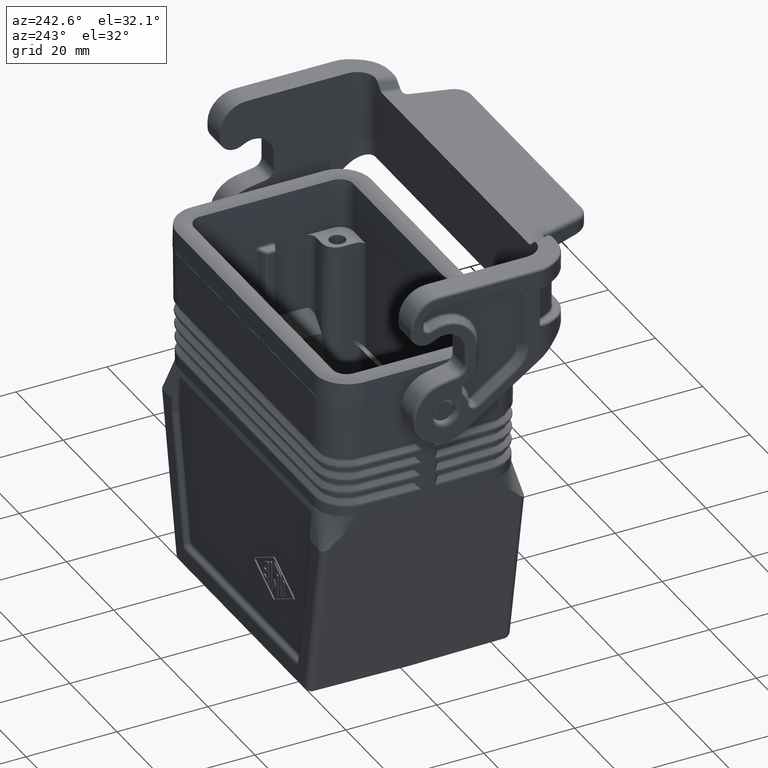
[diagram: clean part render]
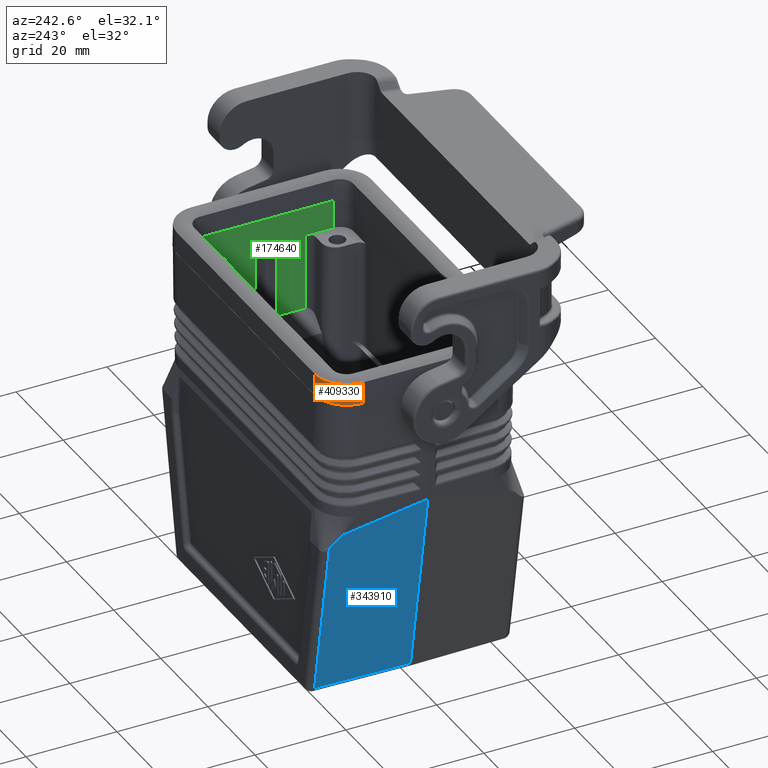
[diagram: same view with three faces highlighted in distinct colors, each labeled with its STEP entity id]
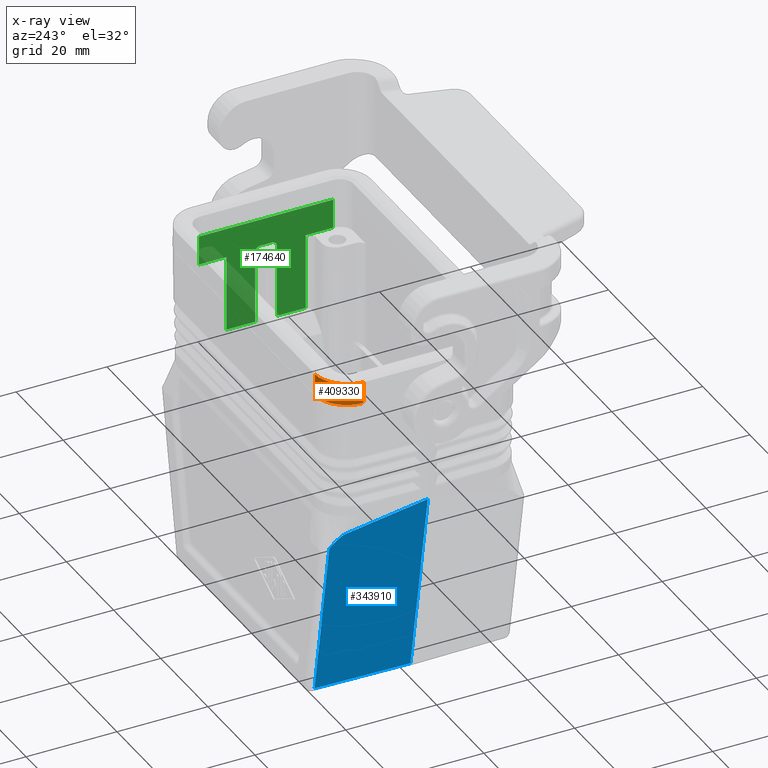
[diagram: x-ray of the same camera — body ghosted, the three highlighted faces saturated]
A machine part, auxiliary view with three faces highlighted in distinct colors.
The next image is the same camera in x-ray (body ghosted, the three faces saturated) — at least one of them is partly hidden behind the body in this view.
Their STEP definitions:

[orange] entity #409330 — the highlighted cylindrical surface (edge-blend (fillet) strip) has radius 7 mm, axis along (0.0174, -0.0174, 0.9997).
#338380=CARTESIAN_POINT('',(74.249363047703,57.8622095599236,
0.250000000000014));
#338390=VERTEX_POINT('',#338380);
#384140=CARTESIAN_POINT('',(81.0787767478423,63.7277816376477,
-4.46028682450612));
#384150=CARTESIAN_POINT('',(81.0787767478423,62.8862861857834,
-4.92002262571846));
#384160=CARTESIAN_POINT('',(81.0787767478423,61.81,-5.15525859545347));
#384170=CARTESIAN_POINT('',(81.0787767478423,60.7337138142166,
-4.92002262571845));
#384180=CARTESIAN_POINT('',(81.0787767478423,59.8922183623523,
-4.46028682450611));
#384190=CARTESIAN_POINT('',(79.8807238022891,63.7277816376477,
-4.46028682450612));
#384200=CARTESIAN_POINT('',(80.0283686536477,62.8862861857834,
-4.92002262571846));
#384210=CARTESIAN_POINT('',(80.2172087876819,61.81,-5.15525859545347));
#384220=CARTESIAN_POINT('',(80.4060489217161,60.7337138142166,
-4.92002262571845));
#384230=CARTESIAN_POINT('',(80.5536937730747,59.8922183623523,
-4.46028682450611));
#384240=CARTESIAN_POINT('',(78.7031637523404,63.4123286382789,
-4.46028682450612));
#384250=CARTESIAN_POINT('',(78.9959931901507,62.6097228698981,
-4.92002262571846));
#384260=CARTESIAN_POINT('',(79.3705267399253,61.5831772133237,
-5.15525859545347));
#384270=CARTESIAN_POINT('',(79.7450602897,60.5566315567494,
-4.92002262571845));
#384280=CARTESIAN_POINT('',(80.0378897275102,59.7540257883686,
-4.46028682450611));
#384290=CARTESIAN_POINT('',(76.6278582662526,62.2142206813909,
-4.46028682450611));
#384300=CARTESIAN_POINT('',(77.1764872900197,61.5592922170783,
-4.92002262571846));
#384310=CARTESIAN_POINT('',(77.878192614858,60.7216282020747,
-5.15525859545347));
#384320=CARTESIAN_POINT('',(78.5798979396962,59.883964187071,
-4.92002262571845));
#384330=CARTESIAN_POINT('',(79.1285269634633,59.2290357227585,
-4.46028682450611));
#384340=CARTESIAN_POINT('',(75.7657793186089,61.3521417337472,
-4.46028682450611));
#384350=CARTESIAN_POINT('',(76.4207077829215,60.80351270998,
-4.92002262571845));
#384360=CARTESIAN_POINT('',(77.2583717979251,60.1018073851418,
-5.15525859545347));
#384370=CARTESIAN_POINT('',(78.0960358129288,59.4001020603035,
-4.92002262571845));
#384380=CARTESIAN_POINT('',(78.7509642772413,58.8514730365365,
-4.46028682450611));
#384390=CARTESIAN_POINT('',(74.567671361721,59.2768362476593,
-4.46028682450611));
#384400=CARTESIAN_POINT('',(75.3702771301018,58.984006809849,
-4.92002262571845));
#384410=CARTESIAN_POINT('',(76.3968227866761,58.6094732600744,
-5.15525859545347));
#384420=CARTESIAN_POINT('',(77.4233684432504,58.2349397102998,
-4.92002262571845));
#384430=CARTESIAN_POINT('',(78.2259742116313,57.9421102724895,
-4.4602868245061));
#384440=CARTESIAN_POINT('',(74.2522183623522,58.0992761977106,
-4.46028682450611));
#384450=CARTESIAN_POINT('',(75.0937138142165,57.951631346352,
-4.92002262571845));
#384460=CARTESIAN_POINT('',(76.1699999999999,57.7627912123178,
-5.15525859545347));
#384470=CARTESIAN_POINT('',(77.2462861857833,57.5739510782836,
-4.92002262571845));
#384480=CARTESIAN_POINT('',(78.0877816376476,57.426306226925,
-4.4602868245061));
#384490=CARTESIAN_POINT('',(74.2522183623522,56.9012232521574,
-4.46028682450611));
#384500=CARTESIAN_POINT('',(75.0937138142165,56.9012232521574,
-4.92002262571845));
#384510=CARTESIAN_POINT('',(76.1699999999999,56.9012232521574,
-5.15525859545347));
#384520=CARTESIAN_POINT('',(77.2462861857833,56.9012232521574,
-4.92002262571845));
#384530=CARTESIAN_POINT('',(78.0877816376476,56.9012232521574,
-4.4602868245061));
#384540=(BOUNDED_SURFACE() B_SPLINE_SURFACE(4,3,((#384140,#384190,
#384240,#384290,#384340,#384390,#384440,#384490),(#384150,#384200,
#384250,#384300,#384350,#384400,#384450,#384500),(#384160,#384210,
#384260,#384310,#384360,#384410,#384460,#384510),(#384170,#384220,
#384270,#384320,#384370,#384420,#384470,#384520),(#384180,#384230,
#384280,#384330,#384380,#384430,#384480,#384530)),.UNSPECIFIED.,.F.,.F.,
.F.) B_SPLINE_SURFACE_WITH_KNOTS((5,5),(4,2,2,4),(0.,1.00004528560956),(
0.,1.57974828744028,3.15949657488057,4.73924486232085),.UNSPECIFIED.) 
GEOMETRIC_REPRESENTATION_ITEM() RATIONAL_B_SPLINE_SURFACE(((1.,1.,1.,1.,
1.,1.,1.,1.),(1.,1.,1.,1.,1.,1.,1.,1.),(0.990007541906154,
0.990007541906154,0.990007541906154,0.990007541906154,0.990007541906154,
0.990007541906154,0.990007541906154,0.990007541906154),(1.,1.,1.,1.,1.,
1.,1.,1.),(1.,1.,1.,1.,1.,1.,1.,1.))) REPRESENTATION_ITEM('') SURFACE())
;
#384600=CARTESIAN_POINT('',(81.0787767478423,63.7256383165523,
-4.46145693981216));
#384610=VERTEX_POINT('',#384600);
#384660=CARTESIAN_POINT('',(81.2618326339341,56.7181673660659,
-4.94999999999999));
#384670=DIRECTION('',(0.0174497491606827,-0.0174497491606847,
-0.999695459881888));
#384680=DIRECTION('',(0.999847695156391,3.90436829152115E-17,
0.0174524064372835));
#384690=AXIS2_PLACEMENT_3D('',#384660,#384670,#384680);
#384700=CYLINDRICAL_SURFACE('',#384690,7.);
#384710=CARTESIAN_POINT('',(81.0787767478423,63.7256383165524,
-4.46145693981236));
#384720=CARTESIAN_POINT('',(80.9683367464175,63.7228911562201,
-4.46295562417169));
#384730=CARTESIAN_POINT('',(80.8578041623665,63.7175240830197,
-4.46441572968826));
#384740=CARTESIAN_POINT('',(80.7473616674164,63.7095277172388,
-4.46583500595362));
#384750=CARTESIAN_POINT('',(80.6369193546437,63.7015313646481,
-4.46725427987785));
#384760=CARTESIAN_POINT('',(80.5265683692417,63.6909057455582,
-4.46863272165967));
#384770=CARTESIAN_POINT('',(80.4164953290837,63.6776591737657,
-4.46996855223123));
#384780=CARTESIAN_POINT('',(80.3064223534556,63.664412609739,
-4.47130438201966));
#384790=CARTESIAN_POINT('',(80.1966285786578,63.6485452212779,
-4.47259759660099));
#384800=CARTESIAN_POINT('',(80.0873003239848,63.6300833472289,
-4.47384675982134));
#384810=CARTESIAN_POINT('',(79.9779720193555,63.611621464744,
-4.47509592361248));
#384820=CARTESIAN_POINT('',(79.8691104777012,63.5905653241136,
-4.47630103053219));
#384830=CARTESIAN_POINT('',(79.7608976051967,63.5669587404968,
-4.47746088580276));
#384840=CARTESIAN_POINT('',(79.6526845686557,63.5433521210955,
-4.47862074283151));
#384850=CARTESIAN_POINT('',(79.5451214017524,63.5171953798884,
-4.47973534103141));
#384860=CARTESIAN_POINT('',(79.4383816126893,63.488548380723,
-4.48080366182782));
#384870=CARTESIAN_POINT('',(79.3316961005632,63.4599159484906,
-4.48187143938556));
#384880=CARTESIAN_POINT('',(79.2255388615899,63.4287183261582,
-4.48289595317593));
#384890=CARTESIAN_POINT('',(79.1200033885484,63.3949576217513,
-4.48387627234624));
#384900=CARTESIAN_POINT('',(79.0144749557352,63.3611991695072,
-4.48485652611985));
#384910=CARTESIAN_POINT('',(78.9095990106799,63.324886260602,
-4.48579228150101));
#384920=CARTESIAN_POINT('',(78.8055562606302,63.2860623761251,
-4.48668179121269));
#384930=CARTESIAN_POINT('',(78.7015136724879,63.2472385520645,
-4.48757129954015));
#384940=CARTESIAN_POINT('',(78.5983054837528,63.2059041383175,
-4.48841454580907));
#384950=CARTESIAN_POINT('',(78.4961107902618,63.1621210290527,
-4.48920991864307));
#384960=CARTESIAN_POINT('',(78.3939161479913,63.1183379417323,
-4.49000529107844));
#384970=CARTESIAN_POINT('',(78.2927361907203,63.0721066479352,
-4.49075277194689));
#384980=CARTESIAN_POINT('',(78.1927442565163,63.0235065198082,
-4.49145103358155));
#384990=CARTESIAN_POINT('',(78.0927522687045,62.9749063656256,
-4.49214929559056));
#385000=CARTESIAN_POINT('',(77.9939494512697,62.9239379578993,
-4.49279831928305));
#385010=CARTESIAN_POINT('',(77.8964996078331,62.8706964046201,
-4.49339723889279));
#385020=CARTESIAN_POINT('',(77.799049609197,62.8174547665479,
-4.49399615945639));
#385030=CARTESIAN_POINT('',(77.7029536634865,62.7619406410317,
-4.49454500397169));
#385040=CARTESIAN_POINT('',(77.6083626277439,62.7042623245162,
-4.4950433957411));
#385050=CARTESIAN_POINT('',(77.5137602480984,62.6465770908841,
-4.49554184728053));
#385060=CARTESIAN_POINT('',(77.4207106935775,62.586759241841,
-4.49598957443331));
#385070=CARTESIAN_POINT('',(77.3292162313772,62.5248376328304,
-4.49638724824457));
#385080=CARTESIAN_POINT('',(77.2376655594441,62.4628779822048,
-4.49678516636721));
#385090=CARTESIAN_POINT('',(77.1474203199131,62.3986386304609,
-4.49713403200174));
#385100=CARTESIAN_POINT('',(77.0586410910898,62.3322044295879,
-4.49743328698364));
#385110=CARTESIAN_POINT('',(76.9698620705245,62.2657703845561,
-4.49773254126355));
#385120=CARTESIAN_POINT('',(76.8825501009695,62.1971421562572,
-4.49798219005188));
#385130=CARTESIAN_POINT('',(76.7968614530909,62.1264227306766,
-4.49818197786361));
#385140=CARTESIAN_POINT('',(76.7111729128383,62.0557033939204,
-4.49838176542441));
#385150=CARTESIAN_POINT('',(76.6271087063065,61.9828936324797,
-4.49853169600521));
#385160=CARTESIAN_POINT('',(76.5448167053064,61.9081128592305,
-4.49863171777265));
#385170=CARTESIAN_POINT('',(76.4625247215523,61.8333321016532,
-4.49873173951914));
#385180=CARTESIAN_POINT('',(76.3820059024992,61.7565811929106,
-4.49878185479433));
#385190=CARTESIAN_POINT('',(76.303396244974,61.6779936016787,
-4.49878214840223));
#385200=CARTESIAN_POINT('',(76.2247865222424,61.5994059452589,
-4.49878244201037));
#385210=CARTESIAN_POINT('',(76.1480868450449,61.5189825350669,
-4.49873291441216));
#385220=CARTESIAN_POINT('',(76.0734184610721,61.4368678754925,
-4.49863375862463));
#385230=CARTESIAN_POINT('',(75.998749935411,61.3547530601,
-4.49853460264894));
#385240=CARTESIAN_POINT('',(75.9261134909267,61.2709479701025,
-4.4983858171357));
#385250=CARTESIAN_POINT('',(75.8556133585259,61.1856044689147,
-4.49818771457808));
#385260=CARTESIAN_POINT('',(75.8203632833358,61.1429327074383,
-4.49808866327402));
#385270=CARTESIAN_POINT('',(75.7856470719673,61.0998765067034,
-4.4979772848654));
#385280=CARTESIAN_POINT('',(75.7514760718344,61.0564552560449,
-4.49785363317242));
#385290=CARTESIAN_POINT('',(75.7173148731082,61.0130464600798,
-4.49773001694695));
#385300=CARTESIAN_POINT('',(75.6836452358117,60.9692053669946,
-4.49759394560854));
#385310=CARTESIAN_POINT('',(75.6504679807407,60.9249278102274,
-4.49744529289693));
#385320=CARTESIAN_POINT('',(75.5841159369346,60.8363759882046,
-4.49714799852428));
#385330=CARTESIAN_POINT('',(75.5197557349931,60.7461053210913,
-4.49680043661821));
#385340=CARTESIAN_POINT('',(75.4575107956092,60.6542515370453,
-4.49640229990077));
#385350=CARTESIAN_POINT('',(75.3952659827796,60.5623979397533,
-4.4960041639928));
#385360=CARTESIAN_POINT('',(75.3351371955536,60.4689622132099,
-4.49555544299331));
#385370=CARTESIAN_POINT('',(75.2772370501652,60.374095173175,
-4.49505633610257));
#385380=CARTESIAN_POINT('',(75.2193369602929,60.2792282241009,
-4.49455722969038));
#385390=CARTESIAN_POINT('',(75.1636662109681,60.1829310334275,
-4.49400779354208));
#385400=CARTESIAN_POINT('',(75.1103234934571,60.0853664729896,
-4.49340870258553));
#385410=CARTESIAN_POINT('',(75.0569807716141,59.9878019046285,
-4.49280961158031));
#385420=CARTESIAN_POINT('',(75.0059666965445,59.8889710994884,
-4.49216083803256));
#385430=CARTESIAN_POINT('',(74.9573636996675,59.7890455223144,
-4.49146352756051));
#385440=CARTESIAN_POINT('',(74.9087606481127,59.6891198327257,
-4.49076621630399));
#385450=CARTESIAN_POINT('',(74.8625691940657,59.5881005367403,
-4.49002038843881));
#385460=CARTESIAN_POINT('',(74.8188539467837,59.4861638021115,
-4.48922761500575));
#385470=CARTESIAN_POINT('',(74.7751386030021,59.3842268424615,
-4.48843483982268));
#385480=CARTESIAN_POINT('',(74.7338998763777,59.2813736152973,
-4.48759513791682));
#385490=CARTESIAN_POINT('',(74.6951837768901,59.1777806685308,
-4.48671030675274));
#385500=CARTESIAN_POINT('',(74.6758217003764,59.1259734206901,
-4.4862677991415));
#385510=CARTESIAN_POINT('',(74.6571089914006,59.0740357319037,
-4.485814496171));
#385520=CARTESIAN_POINT('',(74.6389855626743,59.0218028480184,
-4.48534895954478));
#385530=CARTESIAN_POINT('',(74.6208634683567,58.9695738099848,
-4.48488345719553));
#385540=CARTESIAN_POINT('',(74.6033443636424,58.9170846210247,
-4.48440601215614));
#385550=CARTESIAN_POINT('',(74.586438358314,58.8643555142061,
-4.48391674034001));
#385560=CARTESIAN_POINT('',(74.5526263522706,58.7588973149587,
-4.48293819684127));
#385570=CARTESIAN_POINT('',(74.5212677819802,58.652479119439,
-4.48191234101372));
#385580=CARTESIAN_POINT('',(74.4924332381639,58.5452719921739,
-4.48084021461172));
#385590=CARTESIAN_POINT('',(74.463598744115,58.4380650499445,
-4.47976809006018));
#385600=CARTESIAN_POINT('',(74.4372886670025,58.3300703731617,
-4.47864970468919));
#385610=CARTESIAN_POINT('',(74.4135579388565,58.2214688931423,
-4.47748624447746));
#385620=CARTESIAN_POINT('',(74.3898272264905,58.1128674853386,
-4.47632278503939));
#385630=CARTESIAN_POINT('',(74.3686761620203,58.0036605234669,
-4.47511425874773));
#385640=CARTESIAN_POINT('',(74.3501422601433,57.894034900045,
-4.473862013905));
#385650=CARTESIAN_POINT('',(74.3316083513588,57.7844092357668,
-4.47260976859558));
#385660=CARTESIAN_POINT('',(74.3156918055206,57.6743661817542,
-4.47131381088477));
#385670=CARTESIAN_POINT('',(74.3024118365739,57.5640945238129,
-4.46997571022605));
#385680=CARTESIAN_POINT('',(74.2891318487239,57.4538227089061,
-4.46863760766263));
#385690=CARTESIAN_POINT('',(74.2784885349166,57.3433235549302,
-4.46725736668903));
#385700=CARTESIAN_POINT('',(74.2704827955039,57.2327835092787,
-4.46583687156994));
#385710=CARTESIAN_POINT('',(74.2624770358924,57.1222431847301,
-4.4644163728669));
#385720=CARTESIAN_POINT('',(74.2571088423311,57.0116631953386,
-4.46295562338137));
#385730=CARTESIAN_POINT('',(74.2543616834477,56.9012232521574,
-4.46145693981241));
#385740=B_SPLINE_CURVE_WITH_KNOTS('',3,(#384710,#384720,#384730,#384740,
#384750,#384760,#384770,#384780,#384790,#384800,#384810,#384820,#384830,
#384840,#384850,#384860,#384870,#384880,#384890,#384900,#384910,#384920,
#384930,#384940,#384950,#384960,#384970,#384980,#384990,#385000,#385010,
#385020,#385030,#385040,#385050,#385060,#385070,#385080,#385090,#385100,
#385110,#385120,#385130,#385140,#385150,#385160,#385170,#385180,#385190,
#385200,#385210,#385220,#385230,#385240,#385250,#385260,#385270,#385280,
#385290,#385300,#385310,#385320,#385330,#385340,#385350,#385360,#385370,
#385380,#385390,#385400,#385410,#385420,#385430,#385440,#385450,#385460,
#385470,#385480,#385490,#385500,#385510,#385520,#385530,#385540,#385550,
#385560,#385570,#385580,#385590,#385600,#385610,#385620,#385630,#385640,
#385650,#385660,#385670,#385680,#385690,#385700,#385710,#385720,#385730)
,.UNSPECIFIED.,.F.,.F.,(4,3,3,3,3,3,3,3,3,3,3,3,3,3,3,3,3,3,3,3,3,3,3,3,
3,3,3,3,3,3,3,3,3,3,4),(0.,0.331866390886903,0.664320895713415,
0.996989918284365,1.32949149474603,1.66145018859539,1.99334474892569,
2.32615686617379,2.65954156252115,2.99311511354934,3.32648670109003,
3.65927310346375,3.9911441107941,4.32331914969232,4.65632990171477,
4.98980702015361,5.32336329036418,5.65660853329424,5.9891643347575,
6.15507242321489,6.32091438623187,6.65335984075112,6.98653994147464,
7.32007878351351,7.65358684478501,7.98667575283941,8.31897311937671,
8.48477558701871,8.65077020761122,8.98345858168101,9.31677824799831,
9.65034796664179,9.98377707002388,10.3166801610497,10.6486921207216),
.UNSPECIFIED.);
#385750=SURFACE_CURVE('',#385740,(#384700,#384540),.CURVE_3D.);
#385760=CARTESIAN_POINT('',(74.2543616834476,56.9012232521574,
-4.46145693981234));
#385770=VERTEX_POINT('',#385760);
#385780=EDGE_CURVE('',#384610,#385770,#385750,.T.);
#386550=CARTESIAN_POINT('',(74.17,56.8110661339052,0.250000000000007));
#386560=VERTEX_POINT('',#386550);
#386610=CARTESIAN_POINT('',(81.1710662963073,56.8089337036926,
0.250000000000007));
#386620=DIRECTION('',(0.,2.66505956485224E-16,-1.));
#386630=DIRECTION('',(-0.707106781186327,0.707106781186768,
1.88448169057368E-16));
#386640=AXIS2_PLACEMENT_3D('',#386610,#386620,#386630);
#386650=ELLIPSE('',#386640,7.00213243023734,7.);
#386660=EDGE_CURVE('',#386560,#338390,#386650,.T.);
#387620=CARTESIAN_POINT('',(81.1689338660947,63.81,0.25));
#387630=VERTEX_POINT('',#387620);
#387660=CARTESIAN_POINT('',(81.2618326339341,63.7171012321606,
-5.07216684506098));
#387670=DIRECTION('',(-0.0174497491606827,0.0174497491606847,
0.999695459881888));
#387680=VECTOR('',#387670,1.);
#387690=LINE('',#387660,#387680);
#387700=CARTESIAN_POINT('',(81.251152228447,63.7277816376477,
-4.4602868245059));
#387710=VERTEX_POINT('',#387700);
#387720=EDGE_CURVE('',#387710,#387630,#387690,.T.);
#388030=CARTESIAN_POINT('',(110.161223252158,61.8100000000001,
-0.949999999999996));
#388040=DIRECTION('',(-1.,-1.2225988798586E-15,8.26478052383381E-15));
#388050=DIRECTION('',(1.22259887985862E-15,-1.,3.58046925441612E-15));
#388060=AXIS2_PLACEMENT_3D('',#388030,#388040,#388050);
#388070=CYLINDRICAL_SURFACE('',#388060,4.);
#396060=CARTESIAN_POINT('',(74.2522183623522,56.7288477715529,
-4.46028682450607));
#396070=VERTEX_POINT('',#396060);
#396100=CARTESIAN_POINT('',(74.2628987678393,56.7181673660659,
-5.07216684506097));
#396110=DIRECTION('',(-0.0174497491606827,0.0174497491606847,
0.999695459881888));
#396120=VECTOR('',#396110,1.);
#396130=LINE('',#396100,#396120);
#396140=EDGE_CURVE('',#396070,#386560,#396130,.T.);
#396530=CARTESIAN_POINT('',(81.2511522284865,63.7277816376476,
-4.46028682450605));
#396540=CARTESIAN_POINT('',(81.2367818431211,63.7277816376477,
-4.46028682450601));
#396550=CARTESIAN_POINT('',(81.2224121872153,63.7277369659761,
-4.46031123117163));
#396560=CARTESIAN_POINT('',(81.2080437954155,63.7276476322676,
-4.46036003259739));
#396570=CARTESIAN_POINT('',(81.1936754035353,63.7275582985586,
-4.46040883402342));
#396580=CARTESIAN_POINT('',(81.1793082758954,63.7274243028174,
-4.46048203020527));
#396590=CARTESIAN_POINT('',(81.1649429447615,63.7272456630978,
-4.46057959136822));
#396600=CARTESIAN_POINT('',(81.1505776135285,63.727067023377,
-4.46067715253186));
#396610=CARTESIAN_POINT('',(81.1362140789303,63.7268437396841,
-4.46079907867004));
#396620=CARTESIAN_POINT('',(81.1218528702638,63.7265758384165,
-4.46094532221684));
#396630=CARTESIAN_POINT('',(81.1074916614811,63.7263079371468,
-4.46109156576482));
#396640=CARTESIAN_POINT('',(81.0931327787582,63.7259954183103,
-4.46126212671257));
#396650=CARTESIAN_POINT('',(81.0787767478423,63.7256383165523,
-4.46145693981216));
#396660=B_SPLINE_CURVE_WITH_KNOTS('',3,(#396530,#396540,#396550,#396560,
#396570,#396580,#396590,#396600,#396610,#396620,#396630,#396640,#396650)
,.UNSPECIFIED.,.F.,.F.,(4,3,3,3,4),(0.,0.043108793665688,
0.0862121680268002,0.129309090264205,0.172398541111501),.UNSPECIFIED.);
#396670=SURFACE_CURVE('',#396660,(#384700,#388070),.CURVE_3D.);
#396680=EDGE_CURVE('',#387710,#384610,#396670,.T.);
#397310=CARTESIAN_POINT('',(76.17,56.9012232521574,-0.949999999999989));
#397320=DIRECTION('',(1.69768972526034E-15,-1.,8.32357547810288E-15));
#397330=DIRECTION('',(1.,1.69768972526036E-15,2.62572988381369E-15));
#397340=AXIS2_PLACEMENT_3D('',#397310,#397320,#397330);
#397350=CYLINDRICAL_SURFACE('',#397340,4.);
#397360=CARTESIAN_POINT('',(74.2543616834476,56.9012232521574,
-4.46145693981234));
#397370=CARTESIAN_POINT('',(74.2540045816897,56.8868672212447,
-4.4612621267128));
#397380=CARTESIAN_POINT('',(74.2536920628533,56.8725083385252,
-4.4610915657651));
#397390=CARTESIAN_POINT('',(74.2534241615836,56.8581471297458,
-4.46094532221714));
#397400=CARTESIAN_POINT('',(74.2531562603161,56.8437859210826,
-4.46079907867036));
#397410=CARTESIAN_POINT('',(74.2529329766232,56.8294223864877,
-4.46067715253219));
#397420=CARTESIAN_POINT('',(74.2527543369024,56.815057055258,
-4.46057959136856));
#397430=CARTESIAN_POINT('',(74.2525756971829,56.8006917241274,
-4.4604820302056));
#397440=CARTESIAN_POINT('',(74.2524417014416,56.7863245964908,
-4.46040883402374));
#397450=CARTESIAN_POINT('',(74.2523523677326,56.771956204614,
-4.46036003259769));
#397460=CARTESIAN_POINT('',(74.2522630340241,56.7575878128175,
-4.46031123117191));
#397470=CARTESIAN_POINT('',(74.2522183623523,56.743218156915,
-4.46028682450624));
#397480=CARTESIAN_POINT('',(74.2522183623523,56.7288477715529,
-4.46028682450624));
#397490=B_SPLINE_CURVE_WITH_KNOTS('',3,(#397360,#397370,#397380,#397390,
#397400,#397410,#397420,#397430,#397440,#397450,#397460,#397470,#397480)
,.UNSPECIFIED.,.F.,.F.,(4,3,3,3,4),(0.,0.0430894508374646,
0.0861863730650401,0.129289747416138,0.172398541071895),.UNSPECIFIED.);
#397500=SURFACE_CURVE('',#397490,(#384700,#397350),.CURVE_3D.);
#397510=EDGE_CURVE('',#385770,#396070,#397500,.T.);
#409180=ORIENTED_EDGE('',*,*,#397510,.T.);
#409190=ORIENTED_EDGE('',*,*,#385780,.T.);
#409200=ORIENTED_EDGE('',*,*,#396680,.T.);
#409210=ORIENTED_EDGE('',*,*,#387720,.F.);
#409220=CARTESIAN_POINT('',(81.1710662963073,56.8089337036926,
0.250000000000014));
#409230=DIRECTION('',(1.67057759445642E-17,-1.97064586870965E-15,-1.));
#409240=DIRECTION('',(0.707106781186281,-0.707106781186814,
1.40526982453776E-15));
#409250=AXIS2_PLACEMENT_3D('',#409220,#409230,#409240);
#409260=ELLIPSE('',#409250,7.00213243023734,7.);
#409270=EDGE_CURVE('',#338390,#387630,#409260,.T.);
#409280=ORIENTED_EDGE('',*,*,#409270,.T.);
#409290=ORIENTED_EDGE('',*,*,#386660,.T.);
#409300=ORIENTED_EDGE('',*,*,#396140,.T.);
#409310=EDGE_LOOP('',(#409300,#409290,#409280,#409210,#409200,#409190,
#409180));
#409320=FACE_OUTER_BOUND('',#409310,.T.);
#409330=ADVANCED_FACE('',(#409320),#384700,.T.);

[blue] entity #343910 — the highlighted planar face has unit normal (-0.9848, 0.0087, -0.1737).
#2830=CARTESIAN_POINT('',(95.62,55.9851598102565,68.7606060548547));
#2840=VERTEX_POINT('',#2830);
#2870=CARTESIAN_POINT('',(95.62,62.0761821389974,34.2285391921959));
#2880=DIRECTION('',(0.,0.17370590715595,-0.984797572001032));
#2890=VECTOR('',#2880,1.);
#2900=LINE('',#2870,#2890);
#2910=CARTESIAN_POINT('',(95.62,63.3915939565569,26.7710244460151));
#2920=VERTEX_POINT('',#2910);
#2930=EDGE_CURVE('',#2840,#2920,#2900,.T.);
#104240=CARTESIAN_POINT('',(74.6069101967098,55.8312961739701,
68.577227598266));
#104250=VERTEX_POINT('',#104240);
#162830=CARTESIAN_POINT('',(87.6202389744399,55.9265833547073,
68.690793198027));
#162840=DIRECTION('',(-0.99993511934356,-0.00732180059919379,
-0.00872630158584786));
#162850=VECTOR('',#162840,1.);
#162860=LINE('',#162830,#162850);
#162870=EDGE_CURVE('',#2840,#104250,#162860,.T.);
#340460=CARTESIAN_POINT('',(81.1879557833748,63.0702319305791,
26.4503986860161));
#340470=CARTESIAN_POINT('',(85.9986371889166,63.1962040565589,
26.4503986860161));
#340480=CARTESIAN_POINT('',(90.8093185944583,63.3221761825388,
26.4503986860161));
#340490=CARTESIAN_POINT('',(95.6200000000001,63.4481483085187,
26.4503986860161));
#340500=CARTESIAN_POINT('',(-157.274567562472,33.0329107929375,
280.940921900853));
#340510=CARTESIAN_POINT('',(-72.9763783749811,41.8922126525936,
203.362458613125));
#340520=CARTESIAN_POINT('',(11.3218108125117,50.7515145122502,
125.783995325396));
#340530=CARTESIAN_POINT('',(95.6199999999978,59.6108163719066,
48.2055320376664));
#340540=B_SPLINE_SURFACE_WITH_KNOTS('',3,1,((#340460,#340500),(#340470,
#340510),(#340480,#340520),(#340490,#340530)),.UNSPECIFIED.,.F.,.F.,.F.,
(4,4),(2,2),(10.8454751284089,25.2824665414193),(1.,242.129772990806),
.UNSPECIFIED.);
#340570=CARTESIAN_POINT('',(95.62,62.0761821389974,34.2285391921959));
#340580=DIRECTION('',(-0.00872653549837393,0.984760073927079,
0.17369929296727));
#340590=DIRECTION('',(0.,-0.17370590715595,0.984797572001032));
#340600=AXIS2_PLACEMENT_3D('',#340570,#340580,#340590);
#340610=PLANE('',#340600);
#340620=CARTESIAN_POINT('',(77.6735104099461,62.627543818329,
30.201063693434));
#340630=CARTESIAN_POINT('',(79.1690512091561,62.6912146631843,
29.9152270894671));
#340640=CARTESIAN_POINT('',(80.664592008262,62.7548855080353,
29.6293904855202));
#340650=CARTESIAN_POINT('',(82.1601328074551,62.8185563528899,
29.3435538815565));
#340660=CARTESIAN_POINT('',(83.6556736066247,62.8822271977436,
29.0577172775974));
#340670=CARTESIAN_POINT('',(85.1512144057943,62.9458980425973,
28.7718806736381));
#340680=CARTESIAN_POINT('',(86.646755204964,63.0095688874509,
28.486044069679));
#340690=CARTESIAN_POINT('',(88.1422960041336,63.0732397323046,
28.2002074657198));
#340700=CARTESIAN_POINT('',(89.6378368033034,63.1369105771583,
27.9143708617606));
#340710=CARTESIAN_POINT('',(91.133377602473,63.2005814220119,
27.6285342578016));
#340720=CARTESIAN_POINT('',(92.6289184016229,63.2642522668647,
27.3426976538463));
#340730=CARTESIAN_POINT('',(94.1244592008775,63.3279231116933,
27.0568610500336));
#340740=CARTESIAN_POINT('',(95.62,63.391593956557,26.7710244460151));
#340750=B_SPLINE_CURVE_WITH_KNOTS('',3,(#340620,#340630,#340640,#340650,
#340660,#340670,#340680,#340690,#340700,#340710,#340720,#340730,#340740)
,.UNSPECIFIED.,.F.,.F.,(4,3,3,3,4),(0.,4.57182560949722,9.14365121899442
,13.7154768284917,18.2873024379889),.UNSPECIFIED.);
#340760=SURFACE_CURVE('',#340750,(#340610,#340540),.CURVE_3D.);
#340770=CARTESIAN_POINT('',(77.673510409946,62.627543818329,
30.201063693434));
#340780=VERTEX_POINT('',#340770);
#340790=EDGE_CURVE('',#340780,#2920,#340760,.T.);
#340960=CARTESIAN_POINT('',(74.3722335945684,56.0736933232706,
26.4503933502534));
#340970=CARTESIAN_POINT('',(74.3722335945684,56.9774833987332,
26.4503933502534));
#340980=CARTESIAN_POINT('',(74.5472324668817,57.8726780288106,
26.4503933616133));
#340990=CARTESIAN_POINT('',(75.0010106738518,58.9888956286002,
26.4503933907643));
#341000=CARTESIAN_POINT('',(75.1321108299956,59.2597434923264,
26.4503933992191));
#341010=CARTESIAN_POINT('',(75.5753148259334,60.0429838624163,
26.4503934279893));
#341020=CARTESIAN_POINT('',(75.9373221944019,60.5260731498051,
26.4503934513732));
#341030=CARTESIAN_POINT('',(76.7780754863489,61.3891305380069,
26.4503935051613));
#341040=CARTESIAN_POINT('',(77.2515229865253,61.7636596551609,
26.4503935355656));
#341050=CARTESIAN_POINT('',(78.0228932366796,62.2272146131957,
26.4503935853971));
#341060=CARTESIAN_POINT('',(78.2902164872184,62.365359813247,
26.4503936025656));
#341070=CARTESIAN_POINT('',(79.394173064625,62.8482016847684,
26.4503936729983));
#341080=CARTESIAN_POINT('',(80.2844800013657,63.046574047537,
26.4503937297794));
#341090=CARTESIAN_POINT('',(81.1879603735476,63.0702325087684,
26.4503937873198));
#341100=CARTESIAN_POINT('',(72.7810512949949,61.2827214332063,
35.4132158993643));
#341110=CARTESIAN_POINT('',(72.7810512949948,61.3778251516636,
35.4132158993643));
#341120=CARTESIAN_POINT('',(72.7997367081725,61.4741379383824,
35.3941338360078));
#341130=CARTESIAN_POINT('',(72.8464103802631,61.596499650854,
35.3451670965132));
#341140=CARTESIAN_POINT('',(72.8600856270302,61.6270614770544,
35.3309650792769));
#341150=CARTESIAN_POINT('',(72.9074075201653,61.7178031469168,
35.2826379273787));
#341160=CARTESIAN_POINT('',(72.9453880149251,61.773487911123,
35.2433585804779));
#341170=CARTESIAN_POINT('',(73.0305714434926,61.8733990355231,
35.1530072431515));
#341180=CARTESIAN_POINT('',(73.0792085296219,61.9190975942552,
35.1019352527259));
#341190=CARTESIAN_POINT('',(73.1601659708066,61.9782579225646,
35.0182301702532));
#341200=CARTESIAN_POINT('',(73.1876357171183,61.9958720000834,
34.9893910963062));
#341210=CARTESIAN_POINT('',(73.2983570317507,62.0581638700869,
34.8710809391623));
#341220=CARTESIAN_POINT('',(73.387530285663,62.0883659477026,
34.7757021332535));
#341230=CARTESIAN_POINT('',(73.4775530002576,62.0990107875353,
34.6790478294573));
#341240=B_SPLINE_SURFACE_WITH_KNOTS('',3,1,((#340960,#341100),(#340970,
#341110),(#340980,#341120),(#340990,#341130),(#341000,#341140),(#341010,
#341150),(#341020,#341160),(#341030,#341170),(#341040,#341180),(#341050,
#341190),(#341060,#341200),(#341070,#341210),(#341080,#341220),(#341090,
#341230)),.UNSPECIFIED.,.F.,.F.,.F.,(4,2,2,2,2,2,4),(2,2),(0.,
2.71136878210222,3.61515837613629,5.42273756420443,7.23031675227258,
8.13410634630665,10.8454751284089),(0.999995358485235,8.79664513599178),
.UNSPECIFIED.);
#341570=CARTESIAN_POINT('',(77.6735104099459,62.6275438183289,
30.2010636934341));
#341580=CARTESIAN_POINT('',(77.6631395757336,62.6270820363199,
30.2031606681899));
#341590=CARTESIAN_POINT('',(77.6528422034716,62.6265586957625,
30.2056103298292));
#341600=CARTESIAN_POINT('',(77.6426137998101,62.6259888206124,
30.2083272767972));
#341610=CARTESIAN_POINT('',(77.6323850304556,62.6254189250876,
30.2110443209033));
#341620=CARTESIAN_POINT('',(77.622223135124,62.6248021962348,
30.21403023866));
#341630=CARTESIAN_POINT('',(77.6121254327239,62.6241488515726,
30.217226968882));
#341640=CARTESIAN_POINT('',(77.6020276676475,62.6234955028552,
30.220423718946));
#341650=CARTESIAN_POINT('',(77.5919932802822,62.6228053842585,
30.2238321140118));
#341660=CARTESIAN_POINT('',(77.5820246874491,62.6220861782534,
30.2274087208527));
#341670=CARTESIAN_POINT('',(77.5720561234163,62.6213669743262,
30.2309853173605));
#341680=CARTESIAN_POINT('',(77.562153080198,62.6206186059441,
30.2347305487739));
#341690=CARTESIAN_POINT('',(77.5523228777939,62.6198473786497,
30.238609034551));
#341700=CARTESIAN_POINT('',(77.5424949319417,62.6190763283927,
30.2424866300104));
#341710=CARTESIAN_POINT('',(77.532729091564,62.6182815892417,
30.2465016459271));
#341720=CARTESIAN_POINT('',(77.5230149122029,62.61746659523,
30.2506340889549));
#341730=CARTESIAN_POINT('',(77.5133010032327,62.6166516239034,
30.2547664169576));
#341740=CARTESIAN_POINT('',(77.5036400352758,62.6158164769777,
30.2590157870169));
#341750=CARTESIAN_POINT('',(77.494026340427,62.6149639937049,
30.2633658176274));
#341760=CARTESIAN_POINT('',(77.4747990138714,62.6132590327582,
30.2720658502779));
#341770=CARTESIAN_POINT('',(77.4557591656349,62.6114850480052,
30.2811666210291));
#341780=CARTESIAN_POINT('',(77.4368712302299,62.6096578726285,
30.2905765794249));
#341790=CARTESIAN_POINT('',(77.4179829946883,62.6078306682174,
30.2999866873486));
#341800=CARTESIAN_POINT('',(77.3992455529884,62.6059499280977,
30.309707883102));
#341810=CARTESIAN_POINT('',(77.3806331185591,62.6040260357389,
30.3196800037831));
#341820=CARTESIAN_POINT('',(77.3620206155608,62.6021021362924,
30.3296521612019));
#341830=CARTESIAN_POINT('',(77.3435326643569,62.6001349109355,
30.3398762052675));
#341840=CARTESIAN_POINT('',(77.3251521552871,62.5981318250412,
30.3503089526755));
#341850=CARTESIAN_POINT('',(77.3067716696282,62.5961287416982,
30.3607416867956));
#341860=CARTESIAN_POINT('',(77.288498451899,62.5940897062886,
30.371383634416));
#341870=CARTESIAN_POINT('',(77.2703226365103,62.5920205765577,
30.3822010903566));
#341880=CARTESIAN_POINT('',(77.2521468729003,62.5899514527213,
30.3930185154807));
#341890=CARTESIAN_POINT('',(77.2340684664968,62.5878521857263,
30.404011723532));
#341900=CARTESIAN_POINT('',(77.2160832933743,62.5857277187988,
30.4151524825056));
#341910=CARTESIAN_POINT('',(77.1980981688915,62.5836032576169,
30.4262932113497));
#341920=CARTESIAN_POINT('',(77.1802062950542,62.581453571324,
30.4375816346751));
#341930=CARTESIAN_POINT('',(77.1624078145014,62.5792830454542,
30.4489928966887));
#341940=CARTESIAN_POINT('',(77.1446093628674,62.5771125231111,
30.4604041401612));
#341950=CARTESIAN_POINT('',(77.1269043535865,62.5749211498516,
30.471938289073));
#341960=CARTESIAN_POINT('',(77.1092957764296,62.5727129156103,
30.4835728732243));
#341970=CARTESIAN_POINT('',(77.0916840294893,62.5705042838568,
30.495209551759));
#341980=CARTESIAN_POINT('',(77.0741825768998,62.5682805501697,
30.5069373893815));
#341990=CARTESIAN_POINT('',(77.0567558379479,62.5660402075906,
30.5187631419948));
#342000=CARTESIAN_POINT('',(77.0393270178527,62.5637995974644,
30.530590306868));
#342010=CARTESIAN_POINT('',(77.0219692536781,62.5615418609658,
30.542518136744));
#342020=CARTESIAN_POINT('',(77.0046769412363,62.5592686281733,
30.5545371086043));
#342030=CARTESIAN_POINT('',(76.9700923135398,62.5547221622187,
30.5785750542802));
#342040=CARTESIAN_POINT('',(76.9357686667993,62.5501138858854,
30.6029765354176));
#342050=CARTESIAN_POINT('',(76.9016705016773,62.5454537340679,
30.6276834442749));
#342060=CARTESIAN_POINT('',(76.867572229424,62.5407935676089,
30.6523904307576));
#342070=CARTESIAN_POINT('',(76.8336993149496,62.5360813939407,
30.6774035855327));
#342080=CARTESIAN_POINT('',(76.800024926513,62.5313243398392,
30.7026811564868));
#342090=CARTESIAN_POINT('',(76.7663504861159,62.5265672783974,
30.7279587664447));
#342100=CARTESIAN_POINT('',(76.7328745103706,62.5217652590342,
30.7535012288035));
#342110=CARTESIAN_POINT('',(76.6995765042689,62.5169236229898,
30.7792772326104));
#342120=CARTESIAN_POINT('',(76.6662784773765,62.5120819839223,
30.8050532525114));
#342130=CARTESIAN_POINT('',(76.6331583899027,62.5072006801907,
30.8310630843731));
#342140=CARTESIAN_POINT('',(76.6002005993586,62.5022838831697,
30.8572822933919));
#342150=CARTESIAN_POINT('',(76.5672428058461,62.4973670857059,
30.8835015047721));
#342160=CARTESIAN_POINT('',(76.5344472957752,62.4924147640849,
30.9099302676323));
#342170=CARTESIAN_POINT('',(76.5018022654939,62.4874303066265,
30.936548779433));
#342180=CARTESIAN_POINT('',(76.4691572421543,62.482445850228,
30.9631672855736));
#342190=CARTESIAN_POINT('',(76.4366626946746,62.4774292375895,
30.9899756561266));
#342200=CARTESIAN_POINT('',(76.4043099221158,62.4723833242484,
31.0169572649552));
#342210=CARTESIAN_POINT('',(76.3396046147737,62.4622915346508,
31.0709202843119));
#342220=CARTESIAN_POINT('',(76.2754639019354,62.4520826900298,
31.1255752930575));
#342230=CARTESIAN_POINT('',(76.2118475271349,62.441775702636,
31.1808130487846));
#342240=CARTESIAN_POINT('',(76.1482313195596,62.4314687423357,
31.2360506593111));
#342250=CARTESIAN_POINT('',(76.0851396680023,62.4210634314884,
31.2918722057127));
#342260=CARTESIAN_POINT('',(76.0225596548141,62.4105755722712,
31.3481874511252));
#342270=CARTESIAN_POINT('',(75.9599790764825,62.400087618341,
31.4045032051057));
#342280=CARTESIAN_POINT('',(75.8979133329924,62.3895175243876,
31.4613105036309));
#342290=CARTESIAN_POINT('',(75.8363590097837,62.3788777916139,
31.5185383016049));
#342300=CARTESIAN_POINT('',(75.7747956507003,62.3682364969794,
31.5757745003409));
#342310=CARTESIAN_POINT('',(75.7136767050053,62.3575138841537,
31.6334940464503));
#342320=CARTESIAN_POINT('',(75.6529878791099,62.3467158822174,
31.6916626078703));
#342330=CARTESIAN_POINT('',(75.5922990118817,62.3359178729269,
31.7498312089066));
#342340=CARTESIAN_POINT('',(75.5320402102243,62.3250444159441,
31.8084491546355));
#342350=CARTESIAN_POINT('',(75.4722046256673,62.3140998344959,
31.8674915911827));
#342360=CARTESIAN_POINT('',(75.4123690201388,62.3031552492118,
31.9265340484236));
#342370=CARTESIAN_POINT('',(75.3529565716049,62.2921394979088,
31.9860012289758));
#342380=CARTESIAN_POINT('',(75.2939667852304,62.2810556880641,
32.0458754907505));
#342390=CARTESIAN_POINT('',(75.2349769931792,62.2699718771528,
32.105749758287));
#342400=CARTESIAN_POINT('',(75.1764097955214,62.2588199766046,
32.1660312799441));
#342410=CARTESIAN_POINT('',(75.1182704751681,62.2476021336235,
32.2267081477679));
#342420=CARTESIAN_POINT('',(75.0601311613429,62.2363842919019,
32.2873850087787));
#342430=CARTESIAN_POINT('',(75.0024196469279,62.225100483173,
32.3484573513117));
#342440=CARTESIAN_POINT('',(74.9451467837332,62.2137520618771,
32.4099180420156));
#342450=CARTESIAN_POINT('',(74.8878739375175,62.2024036439455,
32.471378714499));
#342460=CARTESIAN_POINT('',(74.8310396511894,62.1909905928455,
32.5332278473353));
#342470=CARTESIAN_POINT('',(74.774660427715,62.1795135767307,
32.5954624814434));
#342480=CARTESIAN_POINT('',(74.7182812307398,62.1680365660103,
32.6576970862999));
#342490=CARTESIAN_POINT('',(74.662356987467,62.1564955718295,
32.7203172916403));
#342500=CARTESIAN_POINT('',(74.6069101967173,62.144890637312,
32.7833239832549));
#342510=B_SPLINE_CURVE_WITH_KNOTS('',3,(#341570,#341580,#341590,#341600,
#341610,#341620,#341630,#341640,#341650,#341660,#341670,#341680,#341690,
#341700,#341710,#341720,#341730,#341740,#341750,#341760,#341770,#341780,
#341790,#341800,#341810,#341820,#341830,#341840,#341850,#341860,#341870,
#341880,#341890,#341900,#341910,#341920,#341930,#341940,#341950,#341960,
#341970,#341980,#341990,#342000,#342010,#342020,#342030,#342040,#342050,
#342060,#342070,#342080,#342090,#342100,#342110,#342120,#342130,#342140,
#342150,#342160,#342170,#342180,#342190,#342200,#342210,#342220,#342230,
#342240,#342250,#342260,#342270,#342280,#342290,#342300,#342310,#342320,
#342330,#342340,#342350,#342360,#342370,#342380,#342390,#342400,#342410,
#342420,#342430,#342440,#342450,#342460,#342470,#342480,#342490,#342500)
,.UNSPECIFIED.,.F.,.F.,(4,3,3,3,3,3,3,3,3,3,3,3,3,3,3,3,3,3,3,3,3,3,3,3,
3,3,3,3,3,3,3,4),(0.,0.0317819195096325,0.0635989137577349,
0.095443875385274,0.127267471169853,0.159036744794334,0.190797433618378,
0.254325086033284,0.317899866431463,0.381549023293503,0.445274036111238,
0.509050274097397,0.572829949888343,0.636547252677885,0.700134805540339,
0.76367915874119,0.890770020399576,1.01787826359999,1.1450180405367,
1.27219870014348,1.39942382687488,1.52669070746106,1.78130700804406,
2.03590323184557,2.29025783063892,2.54448731163317,2.79877721974763,
3.05310482145796,3.30744676180677,3.5617783207202,3.81607277771046,
4.07030090887073),.UNSPECIFIED.);
#342520=SURFACE_CURVE('',#342510,(#341240,#340610),.CURVE_3D.);
#342530=CARTESIAN_POINT('',(74.6069101967172,62.144890637312,
32.7833239832548));
#342540=VERTEX_POINT('',#342530);
#342550=EDGE_CURVE('',#340780,#342540,#342520,.T.);
#343790=ORIENTED_EDGE('',*,*,#2930,.T.);
#343800=ORIENTED_EDGE('',*,*,#162870,.F.);
#343810=CARTESIAN_POINT('',(74.6069101967098,61.8440152927592,
34.4890881316468));
#343820=DIRECTION('',(0.,0.17370590715595,-0.984797572001032));
#343830=VECTOR('',#343820,1.);
#343840=LINE('',#343810,#343830);
#343850=EDGE_CURVE('',#104250,#342540,#343840,.T.);
#343860=ORIENTED_EDGE('',*,*,#343850,.F.);
#343870=ORIENTED_EDGE('',*,*,#342550,.T.);
#343880=ORIENTED_EDGE('',*,*,#340790,.F.);
#343890=EDGE_LOOP('',(#343880,#343870,#343860,#343800,#343790));
#343900=FACE_OUTER_BOUND('',#343890,.T.);
#343910=ADVANCED_FACE('',(#343900),#340610,.T.);

[green] entity #174640 — the highlighted planar face has unit normal (1, -0, 0).
#23900=CARTESIAN_POINT('',(110.37,-5.33999999999998,6.75));
#23910=VERTEX_POINT('',#23900);
#24430=CARTESIAN_POINT('',(104.32,-5.33999999999998,6.75));
#24440=VERTEX_POINT('',#24430);
#24470=CARTESIAN_POINT('',(87.6333287776874,-5.33999999999998,6.75));
#24480=DIRECTION('',(1.,-8.6060114499784E-34,0.));
#24490=VECTOR('',#24480,1.);
#24500=LINE('',#24470,#24490);
#24510=EDGE_CURVE('',#24440,#23910,#24500,.T.);
#157300=CARTESIAN_POINT('',(94.3556505577101,-5.33999999999998,6.25));
#157310=VERTEX_POINT('',#157300);
#157550=CARTESIAN_POINT('',(93.2522726387476,-5.33999999999998,7.25));
#157560=VERTEX_POINT('',#157550);
#157590=CARTESIAN_POINT('',(94.3556505577101,-5.33999999999998,6.25));
#157600=CARTESIAN_POINT('',(94.0799866902414,-5.33999999999998,6.25));
#157610=CARTESIAN_POINT('',(93.8041783329555,-5.34000000000045,
6.33973445301222));
#157620=CARTESIAN_POINT('',(93.5558641175063,-5.33999999999896,
6.5019025192789));
#157630=CARTESIAN_POINT('',(93.362682675553,-5.34000000000071,
6.71920335903705));
#157640=CARTESIAN_POINT('',(93.2522726387476,-5.33999999999998,
6.97433613253131));
#157650=CARTESIAN_POINT('',(93.2522726387476,-5.33999999999998,7.25));
#157660=B_SPLINE_CURVE_WITH_KNOTS('',6,(#157590,#157600,#157610,#157620,
#157630,#157640,#157650),.UNSPECIFIED.,.F.,.F.,(7,7),(0.,1.),
.UNSPECIFIED.);
#157670=EDGE_CURVE('',#157310,#157560,#157660,.T.);
#163790=CARTESIAN_POINT('',(97.9877273612526,-5.33999999999999,
23.4947987944837));
#163800=VERTEX_POINT('',#163790);
#164010=CARTESIAN_POINT('',(97.9877273612526,-5.33999999999998,7.25));
#164020=VERTEX_POINT('',#164010);
#164050=CARTESIAN_POINT('',(97.9877273612526,-5.33999999999999,
34.2285391921959));
#164060=DIRECTION('',(-1.24273768452983E-16,2.66505956485224E-16,-1.));
#164070=VECTOR('',#164060,1.);
#164080=LINE('',#164050,#164070);
#164090=EDGE_CURVE('',#163800,#164020,#164080,.T.);
#165030=CARTESIAN_POINT('',(96.88434944229,-5.33999999999998,6.25));
#165040=VERTEX_POINT('',#165030);
#165090=CARTESIAN_POINT('',(87.6333287776874,-5.33999999999998,6.25));
#165100=DIRECTION('',(1.,-8.6060114499784E-34,0.));
#165110=VECTOR('',#165100,1.);
#165120=LINE('',#165090,#165110);
#165130=EDGE_CURVE('',#157310,#165040,#165120,.T.);
#173790=CARTESIAN_POINT('',(87.6333287776874,-5.34,64.));
#173800=DIRECTION('',(-8.6060114499784E-34,-1.,-2.66505956485224E-16));
#173810=DIRECTION('',(0.,-2.66505956485224E-16,1.));
#173820=AXIS2_PLACEMENT_3D('',#173790,#173800,#173810);
#173830=PLANE('',#173820);
#173840=CARTESIAN_POINT('',(110.37,-5.33999999999999,34.2285391921959));
#173850=DIRECTION('',(-4.93038065763132E-32,2.66505956485224E-16,-1.));
#173860=VECTOR('',#173850,1.);
#173870=LINE('',#173840,#173860);
#173880=CARTESIAN_POINT('',(110.37,-5.33999999999998,0.250000000000135))
;
#173890=VERTEX_POINT('',#173880);
#173900=EDGE_CURVE('',#23910,#173890,#173870,.T.);
#173910=ORIENTED_EDGE('',*,*,#173900,.T.);
#173920=ORIENTED_EDGE('',*,*,#24510,.T.);
#173930=CARTESIAN_POINT('',(104.32,-5.33999999999999,34.2285391921959));
#173940=DIRECTION('',(-4.93038065763132E-32,2.66505956485224E-16,-1.));
#173950=VECTOR('',#173940,1.);
#173960=LINE('',#173930,#173950);
#173970=CARTESIAN_POINT('',(104.32,-5.33999999999999,23.4947987944837));
#173980=VERTEX_POINT('',#173970);
#173990=EDGE_CURVE('',#173980,#24440,#173960,.T.);
#174000=ORIENTED_EDGE('',*,*,#173990,.T.);
#174010=CARTESIAN_POINT('',(87.6333287776874,-5.33999999999999,
23.4947987944837));
#174020=DIRECTION('',(-1.,8.60601144997839E-34,8.6060114499784E-34));
#174030=VECTOR('',#174020,1.);
#174040=LINE('',#174010,#174030);
#174050=EDGE_CURVE('',#173980,#163800,#174040,.T.);
#174060=ORIENTED_EDGE('',*,*,#174050,.F.);
#174070=ORIENTED_EDGE('',*,*,#164090,.F.);
#174080=CARTESIAN_POINT('',(97.9877273612526,-5.33999999999998,
7.24999999999998));
#174090=CARTESIAN_POINT('',(97.9877273612525,-5.33999999999998,
6.97433613253128));
#174100=CARTESIAN_POINT('',(97.8773173244478,-5.34000000000045,
6.71920335903685));
#174110=CARTESIAN_POINT('',(97.6841358824925,-5.33999999999896,
6.50190251927974));
#174120=CARTESIAN_POINT('',(97.4358216670454,-5.34000000000071,
6.33973445301149));
#174130=CARTESIAN_POINT('',(97.1600133097587,-5.33999999999998,6.25));
#174140=CARTESIAN_POINT('',(96.88434944229,-5.33999999999998,6.25));
#174150=B_SPLINE_CURVE_WITH_KNOTS('',6,(#174080,#174090,#174100,#174110,
#174120,#174130,#174140),.UNSPECIFIED.,.F.,.F.,(7,7),(0.,1.),
.UNSPECIFIED.);
#174160=EDGE_CURVE('',#164020,#165040,#174150,.T.);
#174170=ORIENTED_EDGE('',*,*,#174160,.F.);
#174180=ORIENTED_EDGE('',*,*,#165130,.T.);
#174190=ORIENTED_EDGE('',*,*,#157670,.F.);
#174200=CARTESIAN_POINT('',(93.2522726387476,-5.33999999999999,
34.2285391921959));
#174210=DIRECTION('',(1.24273768452983E-16,2.66505956485224E-16,-1.));
#174220=VECTOR('',#174210,1.);
#174230=LINE('',#174200,#174220);
#174240=CARTESIAN_POINT('',(93.2522726387476,-5.33999999999999,
23.4947987944837));
#174250=VERTEX_POINT('',#174240);
#174260=EDGE_CURVE('',#174250,#157560,#174230,.T.);
#174270=ORIENTED_EDGE('',*,*,#174260,.T.);
#174280=CARTESIAN_POINT('',(86.92,-5.33999999999999,23.4947987944837));
#174290=VERTEX_POINT('',#174280);
#174300=EDGE_CURVE('',#174250,#174290,#174040,.T.);
#174310=ORIENTED_EDGE('',*,*,#174300,.F.);
#174320=CARTESIAN_POINT('',(86.92,-5.33999999999999,34.2285391921959));
#174330=DIRECTION('',(-4.93038065763132E-32,2.66505956485224E-16,-1.));
#174340=VECTOR('',#174330,1.);
#174350=LINE('',#174320,#174340);
#174360=CARTESIAN_POINT('',(86.92,-5.33999999999998,6.75));
#174370=VERTEX_POINT('',#174360);
#174380=EDGE_CURVE('',#174290,#174370,#174350,.T.);
#174390=ORIENTED_EDGE('',*,*,#174380,.F.);
#174400=CARTESIAN_POINT('',(87.6333287776874,-5.33999999999998,6.75));
#174410=DIRECTION('',(1.,-8.6060114499784E-34,0.));
#174420=VECTOR('',#174410,1.);
#174430=LINE('',#174400,#174420);
#174440=CARTESIAN_POINT('',(80.8700000000001,-5.33999999999998,6.75));
#174450=VERTEX_POINT('',#174440);
#174460=EDGE_CURVE('',#174450,#174370,#174430,.T.);
#174470=ORIENTED_EDGE('',*,*,#174460,.T.);
#174480=CARTESIAN_POINT('',(80.8700000000001,-5.33999999999999,
34.2285391921959));
#174490=DIRECTION('',(-4.93038065763132E-32,2.66505956485224E-16,-1.));
#174500=VECTOR('',#174490,1.);
#174510=LINE('',#174480,#174500);
#174520=CARTESIAN_POINT('',(80.8700000000001,-5.33999999999998,
0.250000000000135));
#174530=VERTEX_POINT('',#174520);
#174540=EDGE_CURVE('',#174450,#174530,#174510,.T.);
#174550=ORIENTED_EDGE('',*,*,#174540,.F.);
#174560=CARTESIAN_POINT('',(87.6333287776874,-5.33999999999998,
0.250000000000135));
#174570=DIRECTION('',(1.,-3.08148791101958E-33,1.67057759445642E-17));
#174580=VECTOR('',#174570,1.);
#174590=LINE('',#174560,#174580);
#174600=EDGE_CURVE('',#174530,#173890,#174590,.T.);
#174610=ORIENTED_EDGE('',*,*,#174600,.F.);
#174620=EDGE_LOOP('',(#174610,#174550,#174470,#174390,#174310,#174270,
#174190,#174180,#174170,#174070,#174060,#174000,#173920,#173910));
#174630=FACE_OUTER_BOUND('',#174620,.T.);
#174640=ADVANCED_FACE('',(#174630),#173830,.F.);